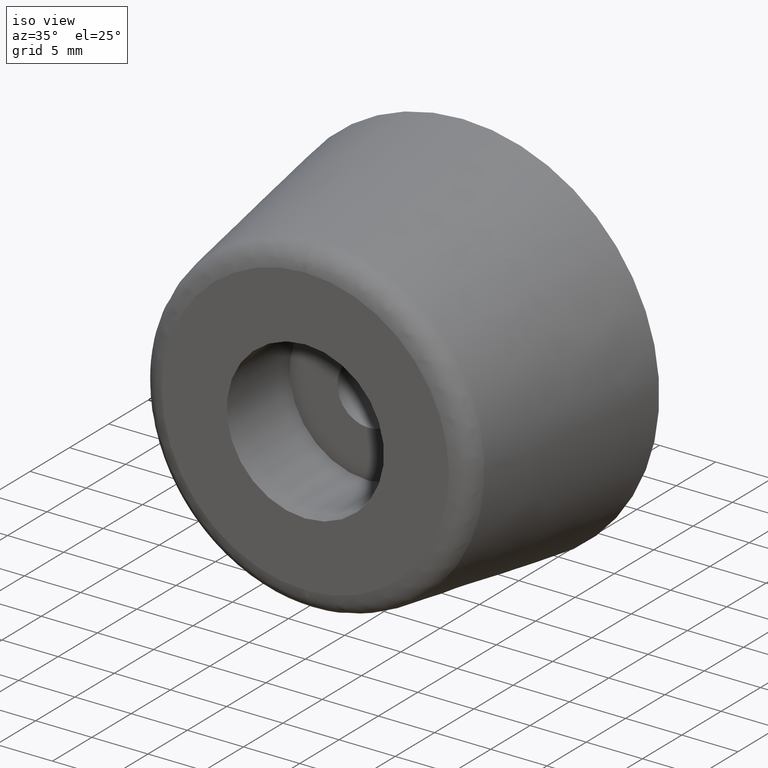
[diagram: clean part render]
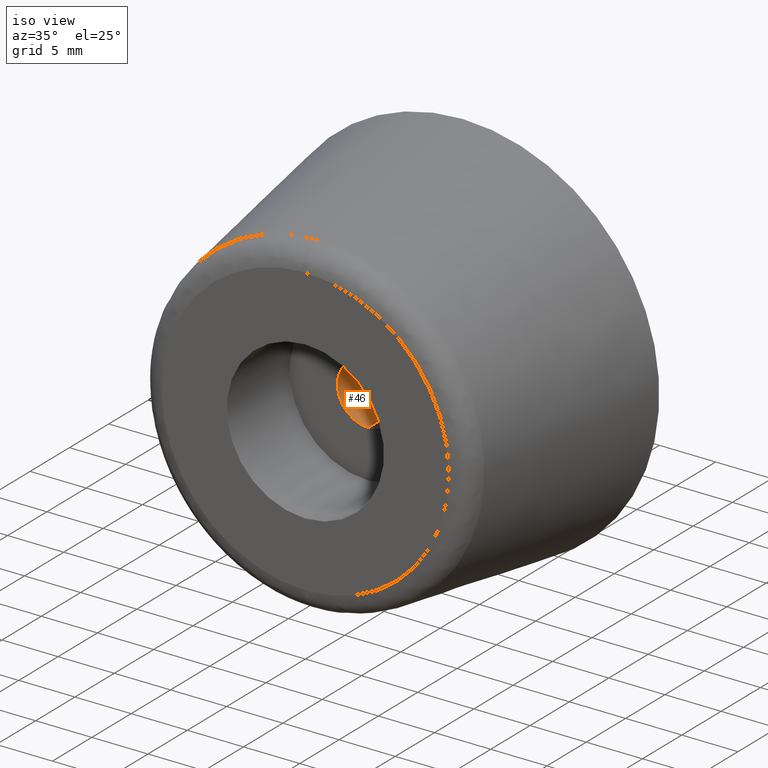
[diagram: same view with one face highlighted and labeled with its STEP entity id]
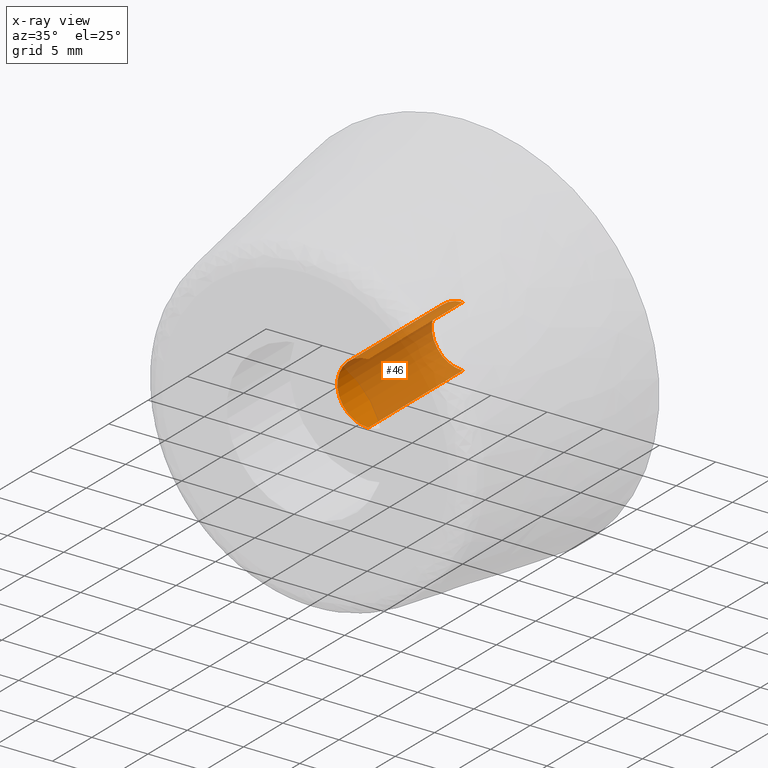
[diagram: x-ray of the same camera — body ghosted, the highlighted face saturated]
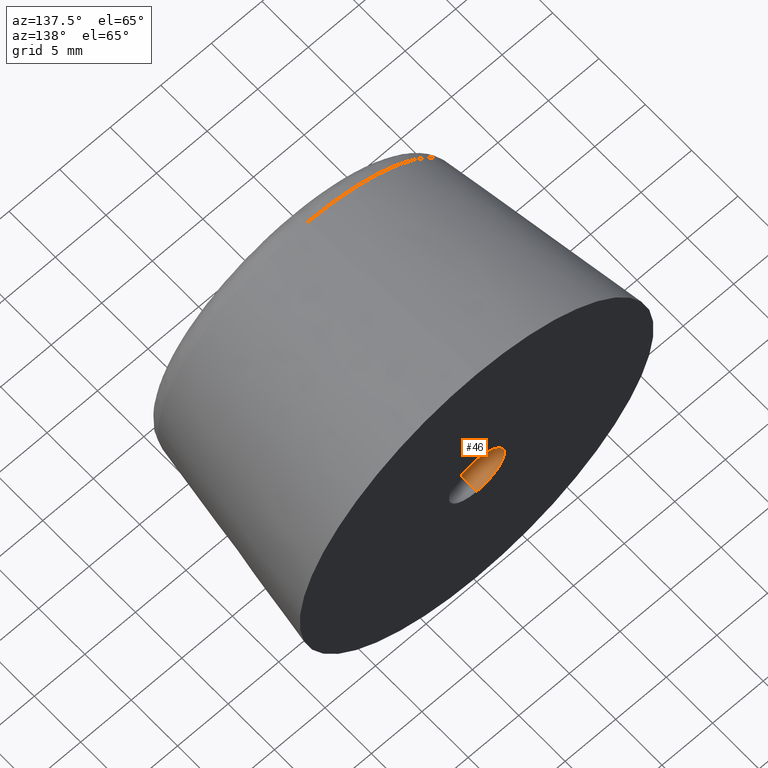
[diagram: same view with one face highlighted and labeled with its STEP entity id]
A machine part, iso view. The second image highlights one B-rep face of the part: STEP entity #46.
The next image is the same camera in x-ray: the body ghosted, the highlighted face saturated — about 83% of this face is hidden behind the body in this view.
A second angle (auxiliary view) of the same face is appended — the face is thin or edge-on in the first view.
In plain terms, the highlighted cylindrical surface (partial cylindrical patch) has radius 2.75 mm, axis along (-0, 1, 0).
Its self-contained STEP definition (entity closure, byte-faithful):
#46=ADVANCED_FACE('',(#115),#114,.F.);
#114=CYLINDRICAL_SURFACE('',#212,2.75000000000E+00);
#115=FACE_OUTER_BOUND('',#213,.T.);
#209=CARTESIAN_POINT('',(3.55271367880E-14,0.00000000000E+00,0.00000000000E+00));
#210=DIRECTION('',(-0.00000000000E+00,1.00000000000E+00,0.00000000000E+00));
#211=DIRECTION('',(-0.00000000000E+00,-0.00000000000E+00,1.00000000000E+00));
#212=AXIS2_PLACEMENT_3D('',#209,#210,#211);
#213=EDGE_LOOP('',(#300,#301,#302,#303));
#300=ORIENTED_EDGE('',*,*,#323,.F.);
#301=ORIENTED_EDGE('',*,*,#336,.F.);
#302=ORIENTED_EDGE('',*,*,#326,.T.);
#303=ORIENTED_EDGE('',*,*,#337,.T.);
#323=EDGE_CURVE('',#357,#356,#364,.T.);
#326=EDGE_CURVE('',#384,#385,#386,.T.);
#336=EDGE_CURVE('',#384,#357,#452,.T.);
#337=EDGE_CURVE('',#385,#356,#458,.T.);
#356=VERTEX_POINT('',#498);
#357=VERTEX_POINT('',#499);
#364=CIRCLE('',#507,2.75000000000E+00);
#384=VERTEX_POINT('',#518);
#385=VERTEX_POINT('',#519);
#386=CIRCLE('',#523,2.75000000000E+00);
#452=(BOUNDED_CURVE() B_SPLINE_CURVE(1,(#562,#563),.UNSPECIFIED.,.F.,.F.) B_SPLINE_CURVE_WITH_KNOTS((2,2),(8.33333343261E-02,9.16666667006E-01),.UNSPECIFIED.) CURVE() GEOMETRIC_REPRESENTATION_ITEM() RATIONAL_B_SPLINE_CURVE((1.00000000000E+00,1.00000000000E+00)) REPRESENTATION_ITEM('') );
#458=(BOUNDED_CURVE() B_SPLINE_CURVE(1,(#564,#565),.UNSPECIFIED.,.F.,.F.) B_SPLINE_CURVE_WITH_KNOTS((2,2),(8.33333333333E-02,9.16666666667E-01),.UNSPECIFIED.) CURVE() GEOMETRIC_REPRESENTATION_ITEM() RATIONAL_B_SPLINE_CURVE((7.50000000000E-01,7.50000000000E-01)) REPRESENTATION_ITEM('') );
#498=CARTESIAN_POINT('',(3.55271367880E-14,0.00000000000E+00,-2.75000000000E+00));
#499=CARTESIAN_POINT('',(3.56751665246E-14,0.00000000000E+00,2.75000000000E+00));
#504=CARTESIAN_POINT('',(3.55271367880E-14,0.00000000000E+00,0.00000000000E+00));
#505=DIRECTION('',(0.00000000000E+00,-1.00000000000E+00,-0.00000000000E+00));
#506=DIRECTION('',(-1.22460635382E-16,0.00000000000E+00,-1.00000000000E+00));
#507=AXIS2_PLACEMENT_3D('',#504,#505,#506);
#518=CARTESIAN_POINT('',(3.56751665246E-14,-1.20000000000E+01,2.75000000000E+00));
#519=CARTESIAN_POINT('',(3.55271367880E-14,-1.20000000000E+01,-2.75000000000E+00));
#520=CARTESIAN_POINT('',(3.55271367880E-14,-1.20000000000E+01,0.00000000000E+00));
#521=DIRECTION('',(0.00000000000E+00,-1.00000000000E+00,-0.00000000000E+00));
#522=DIRECTION('',(-1.22460635382E-16,0.00000000000E+00,-1.00000000000E+00));
#523=AXIS2_PLACEMENT_3D('',#520,#521,#522);
#562=CARTESIAN_POINT('',(3.55271367880E-14,-1.19999999857E+01,2.75000000000E+00));
#563=CARTESIAN_POINT('',(3.55271367880E-14,4.88765539153E-09,2.75000000000E+00));
#564=CARTESIAN_POINT('',(3.55271367880E-14,-1.20000000000E+01,-2.75000000000E+00));
#565=CARTESIAN_POINT('',(3.55271367880E-14,7.40148683083E-16,-2.75000000000E+00));